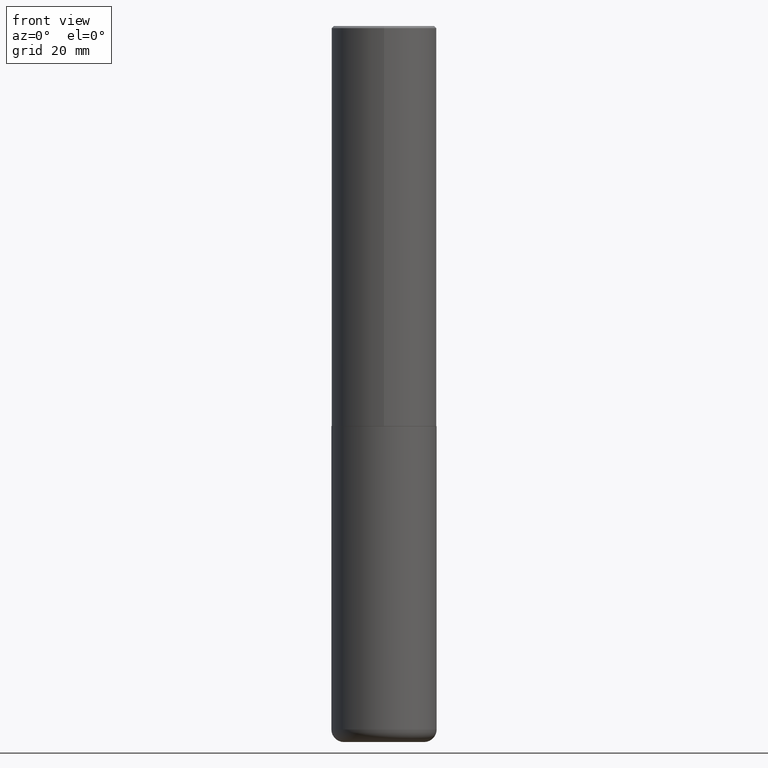
[diagram: clean part render]
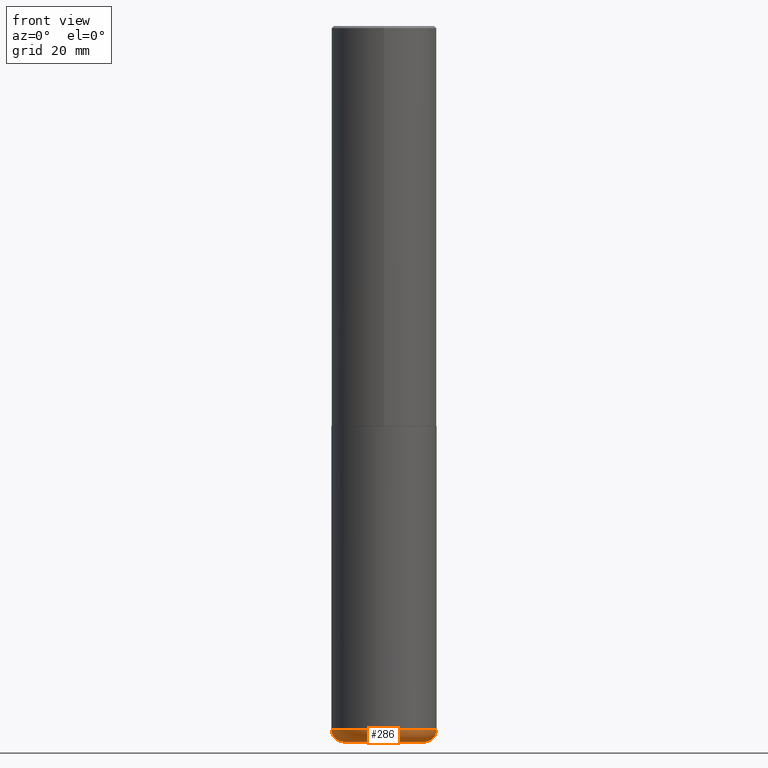
[diagram: same view with one face highlighted and labeled with its STEP entity id]
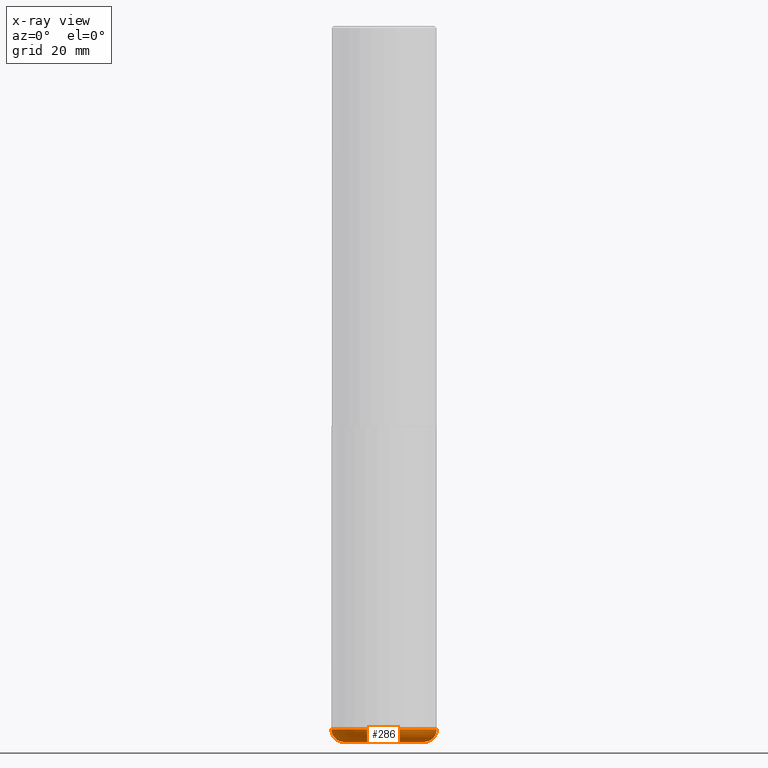
[diagram: x-ray of the same camera — body ghosted, the highlighted face saturated]
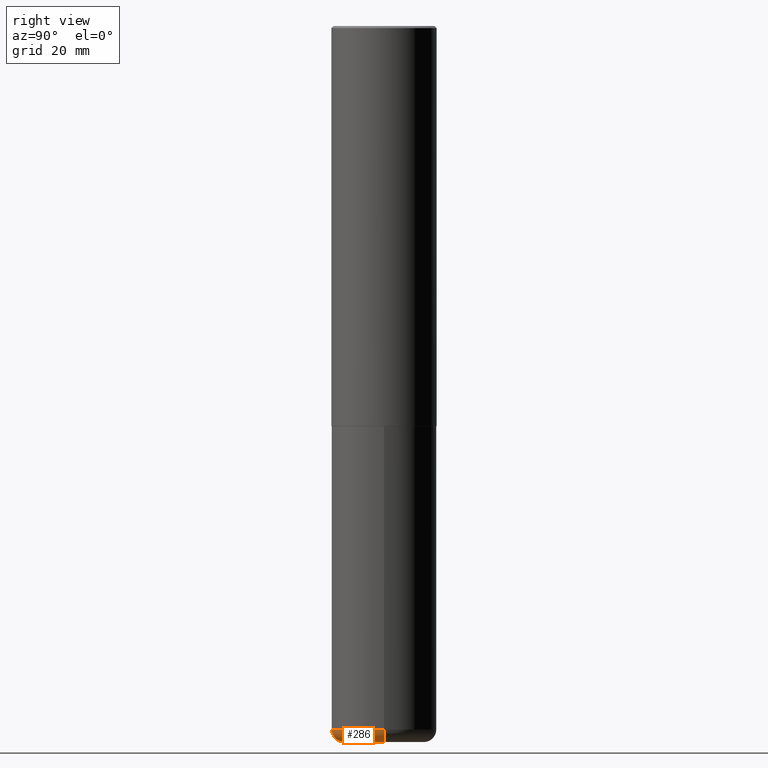
[diagram: same view with one face highlighted and labeled with its STEP entity id]
A machine part, front view. The second image highlights one B-rep face of the part: STEP entity #286.
The next image is the same camera in x-ray: the body ghosted, the highlighted face saturated — about 0% of this face is hidden behind the body in this view.
A second angle (right view) of the same face is appended — the face is thin or edge-on in the first view.
In plain terms, the highlighted toroidal blend (fillet) surface has major radius 9.5009 mm and minor (blend) radius 2.9997 mm.
Its self-contained STEP definition (entity closure, byte-faithful):
#2 = CARTESIAN_POINT ( 'NONE',  ( 1.607846830690603466E-28, -2.295579150662591525E-14, -6.574799999999999756 ) ) ;
#21 = ORIENTED_EDGE ( 'NONE', *, *, #389, .F. ) ;
#25 = FACE_OUTER_BOUND ( 'NONE', #120, .T. ) ;
#33 = EDGE_CURVE ( 'NONE', #378, #305, #276, .T. ) ;
#63 = DIRECTION ( 'NONE',  ( -2.445468806185136597E-29, 3.491481338843145583E-15, 1.000000000000000000 ) ) ;
#80 = DIRECTION ( 'NONE',  ( -2.445468806185136597E-29, 3.491481338843145583E-15, 1.000000000000000000 ) ) ;
#89 = DIRECTION ( 'NONE',  ( 1.000000000000000000, -6.982962677686265133E-15, 0.000000000000000000 ) ) ;
#114 = EDGE_CURVE ( 'NONE', #378, #330, #267, .T. ) ;
#120 = EDGE_LOOP ( 'NONE', ( #340, #334, #368, #21 ) ) ;
#155 = DIRECTION ( 'NONE',  ( -6.982962677686266711E-15, -1.000000000000000000, 3.491481338843145583E-15 ) ) ;
#190 = CARTESIAN_POINT ( 'NONE',  ( 0.3740499999999999381, -2.556776869621446119E-14, -6.574799999999999756 ) ) ;
#213 = CIRCLE ( 'NONE', #287, 0.4921500000000000319 ) ;
#254 = CARTESIAN_POINT ( 'NONE',  ( -0.3740499999999999381, -2.029800640351526055E-14, -6.574799999999999756 ) ) ;
#256 = TOROIDAL_SURFACE ( 'NONE', #350, 0.3740499999999999381, 0.1181000000000000660 ) ;
#258 = DIRECTION ( 'NONE',  ( 1.000000000000000000, -6.982962677686270655E-15, 0.000000000000000000 ) ) ;
#267 = CIRCLE ( 'NONE', #300, 0.1181000000000000383 ) ;
#272 = CIRCLE ( 'NONE', #370, 0.1181000000000000383 ) ;
#276 = CIRCLE ( 'NONE', #325, 0.3740499999999999381 ) ;
#284 = VERTEX_POINT ( 'NONE', #406 ) ;
#286 = ADVANCED_FACE ( 'NONE', ( #25 ), #256, .T. ) ;
#287 = AXIS2_PLACEMENT_3D ( 'NONE', #2, #416, #296 ) ;
#290 = EDGE_CURVE ( 'NONE', #305, #284, #272, .T. ) ;
#293 = DIRECTION ( 'NONE',  ( 7.105427357601001859E-15, 1.000000000000000000, -3.491481338843145583E-15 ) ) ;
#294 = DIRECTION ( 'NONE',  ( 1.000000000000000000, -6.982962677686266711E-15, 4.883557194083112340E-29 ) ) ;
#296 = DIRECTION ( 'NONE',  ( 1.000000000000000000, -6.982962677686265133E-15, 0.000000000000000000 ) ) ;
#300 = AXIS2_PLACEMENT_3D ( 'NONE', #254, #293, #351 ) ;
#305 = VERTEX_POINT ( 'NONE', #321 ) ;
#311 = CARTESIAN_POINT ( 'NONE',  ( 1.607846830690603466E-28, -2.295579150662591525E-14, -6.574799999999999756 ) ) ;
#318 = CARTESIAN_POINT ( 'NONE',  ( -0.4921499999999999764, -1.945885543258258157E-14, -6.574799999999999756 ) ) ;
#321 = CARTESIAN_POINT ( 'NONE',  ( 0.3740499999999999381, -2.598011264233183690E-14, -6.692899999999999849 ) ) ;
#325 = AXIS2_PLACEMENT_3D ( 'NONE', #412, #80, #89 ) ;
#330 = VERTEX_POINT ( 'NONE', #318 ) ;
#334 = ORIENTED_EDGE ( 'NONE', *, *, #33, .T. ) ;
#340 = ORIENTED_EDGE ( 'NONE', *, *, #114, .F. ) ;
#350 = AXIS2_PLACEMENT_3D ( 'NONE', #311, #63, #294 ) ;
#351 = DIRECTION ( 'NONE',  ( -1.000000000000000000, 7.105427357601001859E-15, 0.000000000000000000 ) ) ;
#358 = CARTESIAN_POINT ( 'NONE',  ( -0.3740499999999999381, -2.008460289110760576E-14, -6.692899999999999849 ) ) ;
#368 = ORIENTED_EDGE ( 'NONE', *, *, #290, .T. ) ;
#370 = AXIS2_PLACEMENT_3D ( 'NONE', #190, #155, #258 ) ;
#378 = VERTEX_POINT ( 'NONE', #358 ) ;
#389 = EDGE_CURVE ( 'NONE', #330, #284, #213, .T. ) ;
#406 = CARTESIAN_POINT ( 'NONE',  ( 0.4921499999999999764, -2.639245658844920945E-14, -6.574799999999999756 ) ) ;
#412 = CARTESIAN_POINT ( 'NONE',  ( 1.636727817291649966E-28, -2.336813545274328780E-14, -6.692899999999999849 ) ) ;
#416 = DIRECTION ( 'NONE',  ( -2.445468806185136597E-29, 3.491481338843145583E-15, 1.000000000000000000 ) ) ;